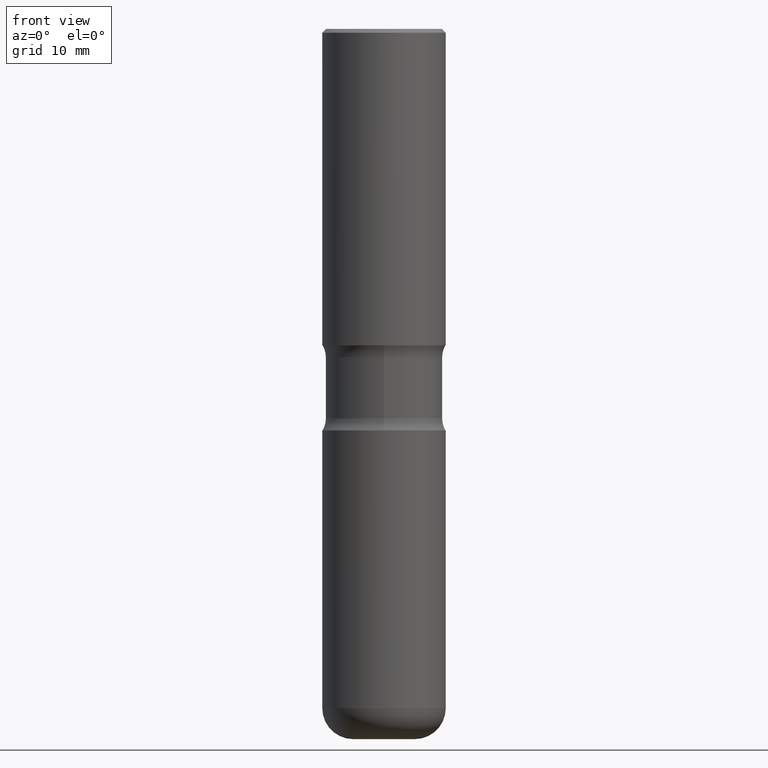
[diagram: clean part render]
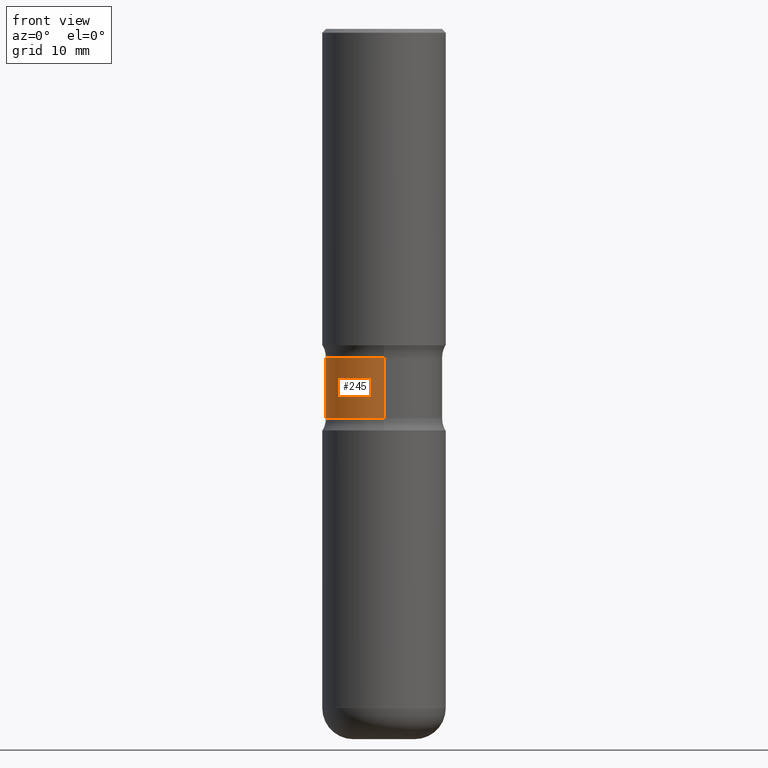
[diagram: same view with one face highlighted and labeled with its STEP entity id]
A machine part, front view. The second image highlights one B-rep face of the part: STEP entity #245.
In plain terms, the highlighted cylindrical surface (partial cylindrical patch) has radius 7.5819 mm, axis along (0, -0, -1).
Its self-contained STEP definition (entity closure, byte-faithful):
#2 = CARTESIAN_POINT ( 'NONE',  ( -2.104286248366432366E-15, -0.2985000000000057052, -1.676083042035704018 ) ) ;
#6 = FACE_OUTER_BOUND ( 'NONE', #372, .T. ) ;
#11 = CARTESIAN_POINT ( 'NONE',  ( 4.855668754776393966E-29, -6.930084013723182929E-15, -1.985216957964293094 ) ) ;
#30 = CIRCLE ( 'NONE', #279, 0.2984999999999998210 ) ;
#32 = EDGE_CURVE ( 'NONE', #485, #443, #498, .T. ) ;
#43 = DIRECTION ( 'NONE',  ( 2.431229257173367832E-29, -3.511873183492796268E-15, -1.000000000000000000 ) ) ;
#48 = ORIENTED_EDGE ( 'NONE', *, *, #165, .T. ) ;
#65 = VERTEX_POINT ( 'NONE', #459 ) ;
#105 = ORIENTED_EDGE ( 'NONE', *, *, #32, .T. ) ;
#133 = CARTESIAN_POINT ( 'NONE',  ( 2.084414359289390435E-15, 0.2984999999999940479, -1.676083042035706239 ) ) ;
#137 = DIRECTION ( 'NONE',  ( 2.431229257173367832E-29, -3.511873183492796268E-15, -1.000000000000000000 ) ) ;
#150 = VERTEX_POINT ( 'NONE', #2 ) ;
#161 = AXIS2_PLACEMENT_3D ( 'NONE', #176, #43, #217 ) ;
#165 = EDGE_CURVE ( 'NONE', #150, #485, #547, .T. ) ;
#174 = DIRECTION ( 'NONE',  ( 2.431229257173367832E-29, -3.511873183492796268E-15, -1.000000000000000000 ) ) ;
#176 = CARTESIAN_POINT ( 'NONE',  ( 4.104093333986238710E-29, -5.844444904265456773E-15, -1.676083042035705128 ) ) ;
#180 = CARTESIAN_POINT ( 'NONE',  ( 8.835063574218829825E-29, -1.267825848624413908E-14, -3.621999999999999442 ) ) ;
#182 = CARTESIAN_POINT ( 'NONE',  ( -2.047858652334712692E-15, -0.2985000000000124776, -3.621999999999998110 ) ) ;
#184 = CYLINDRICAL_SURFACE ( 'NONE', #505, 0.2984999999999998210 ) ;
#216 = VECTOR ( 'NONE', #174, 39.37007874015748143 ) ;
#217 = DIRECTION ( 'NONE',  ( 6.982962677686265922E-15, 1.000000000000000000, -3.660767830705881533E-15 ) ) ;
#220 = EDGE_CURVE ( 'NONE', #150, #65, #476, .T. ) ;
#245 = ADVANCED_FACE ( 'NONE', ( #6 ), #184, .T. ) ;
#250 = EDGE_CURVE ( 'NONE', #65, #443, #30, .T. ) ;
#251 = CARTESIAN_POINT ( 'NONE',  ( 2.084414359289397929E-15, 0.2984999999999928821, -1.985216957964294204 ) ) ;
#275 = ORIENTED_EDGE ( 'NONE', *, *, #220, .F. ) ;
#279 = AXIS2_PLACEMENT_3D ( 'NONE', #11, #137, #525 ) ;
#291 = DIRECTION ( 'NONE',  ( 2.431229257173367832E-29, -3.511873183492796268E-15, -1.000000000000000000 ) ) ;
#296 = DIRECTION ( 'NONE',  ( 6.982962677686266711E-15, 1.000000000000000000, -3.660767830705882322E-15 ) ) ;
#310 = DIRECTION ( 'NONE',  ( 2.431229257173367832E-29, -3.511873183492796268E-15, -1.000000000000000000 ) ) ;
#357 = VECTOR ( 'NONE', #310, 39.37007874015748143 ) ;
#372 = EDGE_LOOP ( 'NONE', ( #275, #48, #105, #551 ) ) ;
#443 = VERTEX_POINT ( 'NONE', #251 ) ;
#459 = CARTESIAN_POINT ( 'NONE',  ( -2.104286248366424083E-15, -0.2985000000000068154, -1.985216957964291984 ) ) ;
#476 = LINE ( 'NONE', #182, #216 ) ;
#485 = VERTEX_POINT ( 'NONE', #133 ) ;
#498 = LINE ( 'NONE', #535, #357 ) ;
#505 = AXIS2_PLACEMENT_3D ( 'NONE', #180, #291, #296 ) ;
#525 = DIRECTION ( 'NONE',  ( 6.982962677686266711E-15, 1.000000000000000000, -3.660767830705882322E-15 ) ) ;
#535 = CARTESIAN_POINT ( 'NONE',  ( 2.084414359289437372E-15, 0.2984999999999871645, -3.622000000000000330 ) ) ;
#547 = CIRCLE ( 'NONE', #161, 0.2984999999999998765 ) ;
#551 = ORIENTED_EDGE ( 'NONE', *, *, #250, .F. ) ;